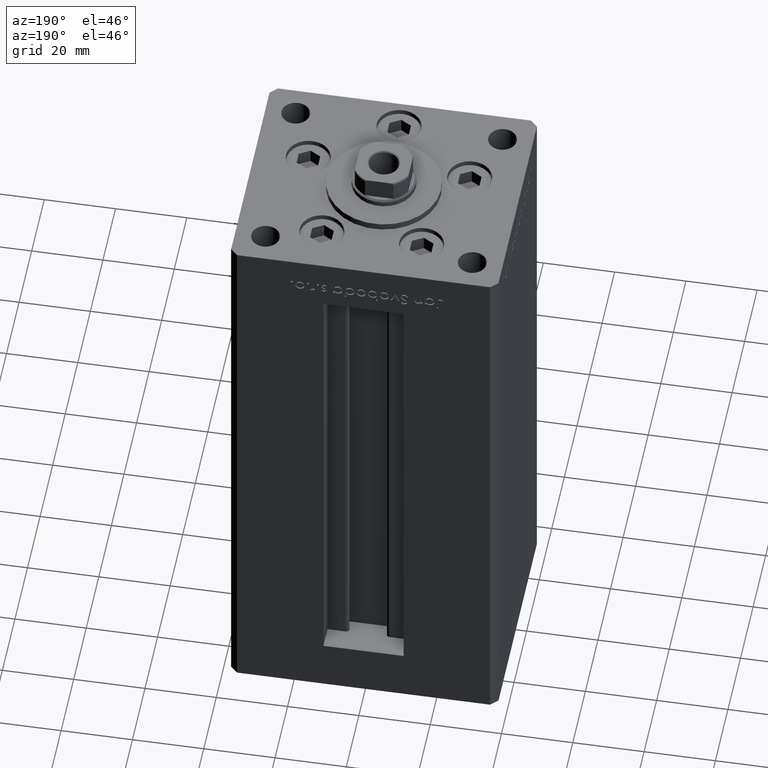
[diagram: clean part render]
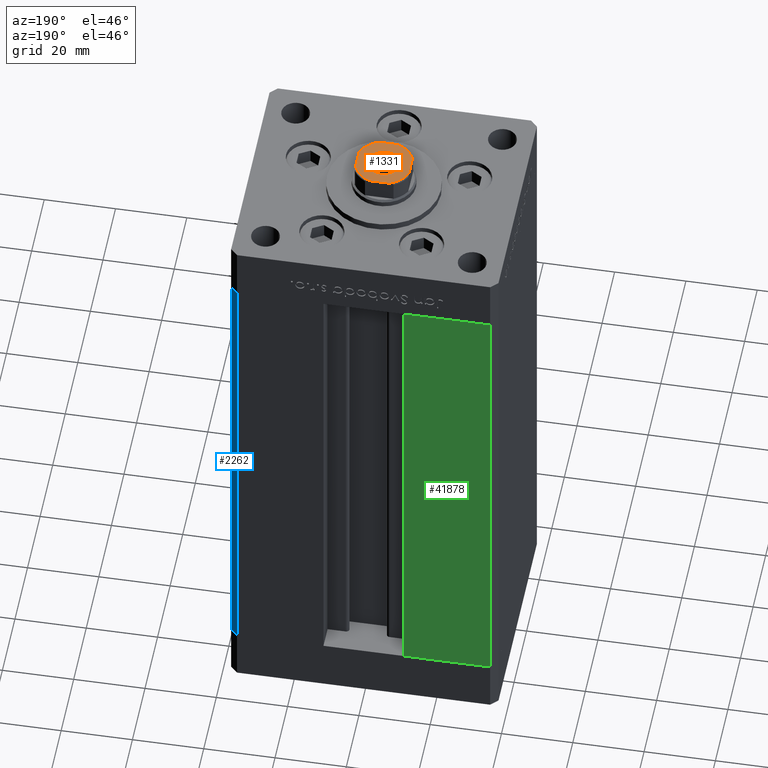
[diagram: same view with three faces highlighted in distinct colors, each labeled with its STEP entity id]
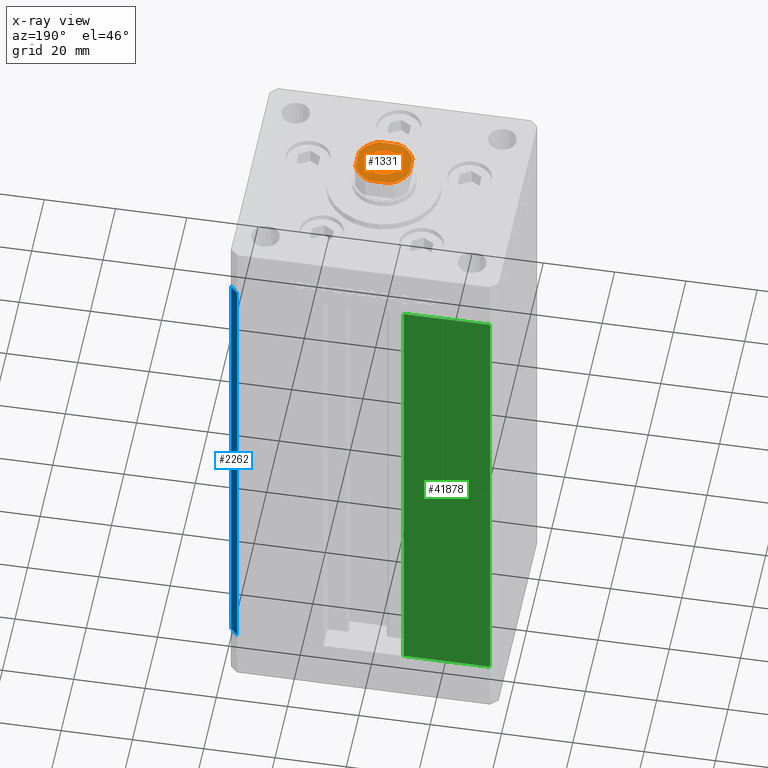
[diagram: x-ray of the same camera — body ghosted, the three highlighted faces saturated]
A machine part, auxiliary view with three faces highlighted in distinct colors.
The next image is the same camera in x-ray (body ghosted, the three faces saturated) — at least one of them is partly hidden behind the body in this view.
Their STEP definitions:

[orange] entity #1331 — the highlighted planar face has unit normal (0, 0, 1).
#93 = AXIS2_PLACEMENT_3D ( 'NONE', #30195, #10792, #2675 ) ;
#876 = DIRECTION ( 'NONE',  ( 1.000000000000000000, 0.000000000000000000, 0.000000000000000000 ) ) ;
#1331 = ADVANCED_FACE ( 'NONE', ( #16540, #48190 ), #39817, .T. ) ;
#1539 = DIRECTION ( 'NONE',  ( -0.000000000000000000, 0.000000000000000000, 1.000000000000000000 ) ) ;
#1774 = DIRECTION ( 'NONE',  ( -1.000000000000000000, -5.782411586589357392E-17, -0.000000000000000000 ) ) ;
#2612 = CIRCLE ( 'NONE', #93, 8.000000000000000000 ) ;
#2675 = DIRECTION ( 'NONE',  ( 1.000000000000000000, 0.000000000000000000, 0.000000000000000000 ) ) ;
#2917 = CARTESIAN_POINT ( 'NONE',  ( -7.499999999999998224, 2.783882181415015644, 148.0000000000000284 ) ) ;
#3037 = VERTEX_POINT ( 'NONE', #4263 ) ;
#3170 = CARTESIAN_POINT ( 'NONE',  ( 0.000000000000000000, 0.000000000000000000, 148.0000000000000284 ) ) ;
#3695 = CARTESIAN_POINT ( 'NONE',  ( 7.500000000000000888, -2.783882181415009427, 148.0000000000000284 ) ) ;
#3723 = DIRECTION ( 'NONE',  ( -0.000000000000000000, 0.000000000000000000, 1.000000000000000000 ) ) ;
#3882 = CIRCLE ( 'NONE', #23172, 8.000000000000000000 ) ;
#4263 = CARTESIAN_POINT ( 'NONE',  ( -2.783882181415013868, 7.499999999999999112, 148.0000000000000284 ) ) ;
#5854 = ORIENTED_EDGE ( 'NONE', *, *, #16508, .T. ) ;
#5947 = DIRECTION ( 'NONE',  ( 1.000000000000000000, 0.000000000000000000, 0.000000000000000000 ) ) ;
#7059 = VERTEX_POINT ( 'NONE', #31980 ) ;
#8108 = VERTEX_POINT ( 'NONE', #24847 ) ;
#8341 = CIRCLE ( 'NONE', #16722, 4.550000000000012257 ) ;
#8904 = DIRECTION ( 'NONE',  ( 0.000000000000000000, -0.000000000000000000, -1.000000000000000000 ) ) ;
#10415 = DIRECTION ( 'NONE',  ( 5.782411586589357392E-17, -1.000000000000000000, 0.000000000000000000 ) ) ;
#10789 = VERTEX_POINT ( 'NONE', #23120 ) ;
#10792 = DIRECTION ( 'NONE',  ( -0.000000000000000000, 0.000000000000000000, 1.000000000000000000 ) ) ;
#11571 = AXIS2_PLACEMENT_3D ( 'NONE', #19908, #47934, #36386 ) ;
#11914 = VERTEX_POINT ( 'NONE', #3695 ) ;
#13816 = CARTESIAN_POINT ( 'NONE',  ( -7.499999999999998224, 7.499999999999999112, 148.0000000000000284 ) ) ;
#15772 = DIRECTION ( 'NONE',  ( 1.000000000000000000, 0.000000000000000000, 0.000000000000000000 ) ) ;
#16508 = EDGE_CURVE ( 'NONE', #8108, #3037, #30079, .T. ) ;
#16540 = FACE_BOUND ( 'NONE', #39404, .T. ) ;
#16722 = AXIS2_PLACEMENT_3D ( 'NONE', #24726, #32582, #876 ) ;
#17018 = CARTESIAN_POINT ( 'NONE',  ( 0.000000000000000000, 0.000000000000000000, 148.0000000000000284 ) ) ;
#17153 = EDGE_CURVE ( 'NONE', #44794, #24289, #42128, .T. ) ;
#17514 = DIRECTION ( 'NONE',  ( 1.000000000000000000, 0.000000000000000000, 0.000000000000000000 ) ) ;
#18031 = CARTESIAN_POINT ( 'NONE',  ( -7.499999999999998224, -2.783882181415016088, 148.0000000000000284 ) ) ;
#19080 = EDGE_CURVE ( 'NONE', #11914, #7059, #19901, .T. ) ;
#19679 = EDGE_CURVE ( 'NONE', #49851, #10789, #8341, .T. ) ;
#19901 = LINE ( 'NONE', #24100, #38523 ) ;
#19908 = CARTESIAN_POINT ( 'NONE',  ( 0.000000000000000000, 0.000000000000000000, 148.0000000000000284 ) ) ;
#20227 = DIRECTION ( 'NONE',  ( 1.000000000000000000, 5.782411586589358625E-17, 0.000000000000000000 ) ) ;
#20273 = CIRCLE ( 'NONE', #48745, 8.000000000000000000 ) ;
#20548 = ORIENTED_EDGE ( 'NONE', *, *, #51318, .T. ) ;
#22367 = EDGE_CURVE ( 'NONE', #7059, #8108, #2612, .T. ) ;
#23120 = CARTESIAN_POINT ( 'NONE',  ( -4.550000000000012257, 5.572142936120472118E-16, 148.0000000000000284 ) ) ;
#23172 = AXIS2_PLACEMENT_3D ( 'NONE', #35173, #3723, #15772 ) ;
#23428 = CARTESIAN_POINT ( 'NONE',  ( -7.499999999999997335, -7.500000000000000888, 148.0000000000000284 ) ) ;
#24100 = CARTESIAN_POINT ( 'NONE',  ( 7.500000000000001776, 7.500000000000000000, 148.0000000000000284 ) ) ;
#24289 = VERTEX_POINT ( 'NONE', #18031 ) ;
#24726 = CARTESIAN_POINT ( 'NONE',  ( 0.000000000000000000, 0.000000000000000000, 148.0000000000000284 ) ) ;
#24847 = CARTESIAN_POINT ( 'NONE',  ( 2.783882181415012980, 7.500000000000000000, 148.0000000000000284 ) ) ;
#25853 = ORIENTED_EDGE ( 'NONE', *, *, #38524, .T. ) ;
#26218 = CARTESIAN_POINT ( 'NONE',  ( 4.550000000000012257, 0.000000000000000000, 148.0000000000000284 ) ) ;
#26904 = VERTEX_POINT ( 'NONE', #37400 ) ;
#29822 = CARTESIAN_POINT ( 'NONE',  ( -7.499999999999998224, 7.499999999999999112, 148.0000000000000284 ) ) ;
#30079 = LINE ( 'NONE', #13816, #45100 ) ;
#30195 = CARTESIAN_POINT ( 'NONE',  ( 0.000000000000000000, 0.000000000000000000, 148.0000000000000284 ) ) ;
#30238 = EDGE_CURVE ( 'NONE', #24289, #35116, #46213, .T. ) ;
#31297 = EDGE_CURVE ( 'NONE', #26904, #11914, #20273, .T. ) ;
#31864 = EDGE_CURVE ( 'NONE', #35116, #26904, #48259, .T. ) ;
#31980 = CARTESIAN_POINT ( 'NONE',  ( 7.500000000000000888, 2.783882181415007206, 148.0000000000000284 ) ) ;
#32203 = DIRECTION ( 'NONE',  ( 1.156482317317871478E-16, 1.000000000000000000, -0.000000000000000000 ) ) ;
#32488 = ORIENTED_EDGE ( 'NONE', *, *, #19679, .T. ) ;
#32582 = DIRECTION ( 'NONE',  ( 0.000000000000000000, -0.000000000000000000, -1.000000000000000000 ) ) ;
#32954 = AXIS2_PLACEMENT_3D ( 'NONE', #17018, #8904, #5947 ) ;
#34616 = ORIENTED_EDGE ( 'NONE', *, *, #31297, .T. ) ;
#35116 = VERTEX_POINT ( 'NONE', #37015 ) ;
#35173 = CARTESIAN_POINT ( 'NONE',  ( 0.000000000000000000, 0.000000000000000000, 148.0000000000000284 ) ) ;
#35379 = DIRECTION ( 'NONE',  ( 1.000000000000000000, 0.000000000000000000, 0.000000000000000000 ) ) ;
#36299 = CIRCLE ( 'NONE', #32954, 4.550000000000012257 ) ;
#36386 = DIRECTION ( 'NONE',  ( 1.000000000000000000, 0.000000000000000000, 0.000000000000000000 ) ) ;
#37015 = CARTESIAN_POINT ( 'NONE',  ( -2.783882181415010315, -7.500000000000000888, 148.0000000000000284 ) ) ;
#37400 = CARTESIAN_POINT ( 'NONE',  ( 2.783882181415008539, -7.500000000000000888, 148.0000000000000284 ) ) ;
#38524 = EDGE_CURVE ( 'NONE', #10789, #49851, #36299, .T. ) ;
#38523 = VECTOR ( 'NONE', #32203, 1000.000000000000000 ) ;
#39404 = EDGE_LOOP ( 'NONE', ( #32488, #25853 ) ) ;
#39817 = PLANE ( 'NONE',  #11571 ) ;
#42128 = LINE ( 'NONE', #29822, #49316 ) ;
#44794 = VERTEX_POINT ( 'NONE', #2917 ) ;
#45100 = VECTOR ( 'NONE', #1774, 1000.000000000000000 ) ;
#45110 = ORIENTED_EDGE ( 'NONE', *, *, #17153, .T. ) ;
#45550 = CARTESIAN_POINT ( 'NONE',  ( 0.000000000000000000, 0.000000000000000000, 148.0000000000000284 ) ) ;
#45969 = ORIENTED_EDGE ( 'NONE', *, *, #31864, .T. ) ;
#46213 = CIRCLE ( 'NONE', #51222, 8.000000000000000000 ) ;
#46925 = DIRECTION ( 'NONE',  ( -0.000000000000000000, 0.000000000000000000, 1.000000000000000000 ) ) ;
#47073 = VECTOR ( 'NONE', #20227, 1000.000000000000000 ) ;
#47201 = ORIENTED_EDGE ( 'NONE', *, *, #22367, .T. ) ;
#47934 = DIRECTION ( 'NONE',  ( -0.000000000000000000, 0.000000000000000000, 1.000000000000000000 ) ) ;
#48190 = FACE_OUTER_BOUND ( 'NONE', #48828, .T. ) ;
#48259 = LINE ( 'NONE', #23428, #47073 ) ;
#48745 = AXIS2_PLACEMENT_3D ( 'NONE', #3170, #46925, #35379 ) ;
#48828 = EDGE_LOOP ( 'NONE', ( #45110, #51837, #45969, #34616, #49673, #47201, #5854, #20548 ) ) ;
#49316 = VECTOR ( 'NONE', #10415, 1000.000000000000000 ) ;
#49673 = ORIENTED_EDGE ( 'NONE', *, *, #19080, .T. ) ;
#49851 = VERTEX_POINT ( 'NONE', #26218 ) ;
#51222 = AXIS2_PLACEMENT_3D ( 'NONE', #45550, #1539, #17514 ) ;
#51318 = EDGE_CURVE ( 'NONE', #3037, #44794, #3882, .T. ) ;
#51837 = ORIENTED_EDGE ( 'NONE', *, *, #30238, .T. ) ;

[blue] entity #2262 — the highlighted planar face has unit normal (0.7071, 0.7071, 0).
#2262 = ADVANCED_FACE ( 'NONE', ( #40664 ), #20487, .T. ) ;
#3443 = ORIENTED_EDGE ( 'NONE', *, *, #25916, .T. ) ;
#4349 = ORIENTED_EDGE ( 'NONE', *, *, #7839, .F. ) ;
#5380 = VECTOR ( 'NONE', #10471, 1000.000000000000114 ) ;
#7839 = EDGE_CURVE ( 'NONE', #34746, #14242, #31298, .T. ) ;
#8383 = DIRECTION ( 'NONE',  ( -0.000000000000000000, -0.000000000000000000, -1.000000000000000000 ) ) ;
#8964 = CARTESIAN_POINT ( 'NONE',  ( 35.50000000000000000, 32.49999999999999289, 136.0000000000000000 ) ) ;
#10471 = DIRECTION ( 'NONE',  ( 0.7071067811865500152, -0.7071067811865451302, 0.000000000000000000 ) ) ;
#12013 = CARTESIAN_POINT ( 'NONE',  ( 35.50000000000000000, 32.49999999999999289, 136.0000000000000000 ) ) ;
#14242 = VERTEX_POINT ( 'NONE', #50089 ) ;
#14870 = VECTOR ( 'NONE', #19754, 1000.000000000000000 ) ;
#16745 = LINE ( 'NONE', #44264, #41052 ) ;
#19754 = DIRECTION ( 'NONE',  ( -0.000000000000000000, -0.000000000000000000, -1.000000000000000000 ) ) ;
#20487 = PLANE ( 'NONE',  #27315 ) ;
#20699 = EDGE_CURVE ( 'NONE', #34746, #33455, #16745, .T. ) ;
#21403 = EDGE_LOOP ( 'NONE', ( #33846, #4349, #25339, #3443 ) ) ;
#24960 = DIRECTION ( 'NONE',  ( 0.7071067811865451302, 0.7071067811865500152, -0.000000000000000000 ) ) ;
#24994 = CARTESIAN_POINT ( 'NONE',  ( 37.50000000000000711, 30.50000000000000000, 136.0000000000000000 ) ) ;
#25339 = ORIENTED_EDGE ( 'NONE', *, *, #20699, .T. ) ;
#25685 = LINE ( 'NONE', #50557, #5380 ) ;
#25916 = EDGE_CURVE ( 'NONE', #33455, #37315, #47960, .T. ) ;
#27315 = AXIS2_PLACEMENT_3D ( 'NONE', #8964, #24960, #40937 ) ;
#27881 = CARTESIAN_POINT ( 'NONE',  ( 35.50000000000000000, 32.49999999999999289, 136.0000000000000000 ) ) ;
#28630 = VECTOR ( 'NONE', #8383, 1000.000000000000000 ) ;
#31298 = LINE ( 'NONE', #27881, #14870 ) ;
#33455 = VERTEX_POINT ( 'NONE', #24994 ) ;
#33846 = ORIENTED_EDGE ( 'NONE', *, *, #39520, .F. ) ;
#34746 = VERTEX_POINT ( 'NONE', #12013 ) ;
#36160 = CARTESIAN_POINT ( 'NONE',  ( 37.50000000000000711, 30.50000000000000000, 0.000000000000000000 ) ) ;
#36922 = DIRECTION ( 'NONE',  ( 0.7071067811865500152, -0.7071067811865451302, 0.000000000000000000 ) ) ;
#37315 = VERTEX_POINT ( 'NONE', #36160 ) ;
#39520 = EDGE_CURVE ( 'NONE', #14242, #37315, #25685, .T. ) ;
#40664 = FACE_OUTER_BOUND ( 'NONE', #21403, .T. ) ;
#40937 = DIRECTION ( 'NONE',  ( -0.7071067811865500152, 0.7071067811865451302, 0.000000000000000000 ) ) ;
#41052 = VECTOR ( 'NONE', #36922, 1000.000000000000114 ) ;
#44264 = CARTESIAN_POINT ( 'NONE',  ( 35.50000000000000000, 32.49999999999999289, 136.0000000000000000 ) ) ;
#47960 = LINE ( 'NONE', #48740, #28630 ) ;
#48740 = CARTESIAN_POINT ( 'NONE',  ( 37.50000000000000711, 30.50000000000000000, 136.0000000000000000 ) ) ;
#50089 = CARTESIAN_POINT ( 'NONE',  ( 35.50000000000000000, 32.49999999999999289, 0.000000000000000000 ) ) ;
#50557 = CARTESIAN_POINT ( 'NONE',  ( 35.50000000000000000, 32.49999999999999289, 0.000000000000000000 ) ) ;

[green] entity #41878 — the highlighted planar face has unit normal (0, -1, 0).
#1988 = CARTESIAN_POINT ( 'NONE',  ( -11.25000000000000178, 32.49999999999999289, 0.000000000000000000 ) ) ;
#4031 = VECTOR ( 'NONE', #48151, 1000.000000000000000 ) ;
#4102 = VERTEX_POINT ( 'NONE', #37808 ) ;
#4166 = CARTESIAN_POINT ( 'NONE',  ( -35.50000000000000000, 32.49999999999999289, 136.0000000000000000 ) ) ;
#4210 = PLANE ( 'NONE',  #22159 ) ;
#6720 = LINE ( 'NONE', #30040, #45207 ) ;
#9954 = EDGE_CURVE ( 'NONE', #23223, #17862, #44220, .T. ) ;
#13514 = EDGE_CURVE ( 'NONE', #38927, #17862, #43148, .T. ) ;
#17862 = VERTEX_POINT ( 'NONE', #30219 ) ;
#18557 = ORIENTED_EDGE ( 'NONE', *, *, #9954, .F. ) ;
#18989 = CARTESIAN_POINT ( 'NONE',  ( -11.25000000000000178, 32.49999999999999289, 0.000000000000000000 ) ) ;
#20050 = EDGE_CURVE ( 'NONE', #23223, #4102, #6720, .T. ) ;
#20187 = DIRECTION ( 'NONE',  ( 0.000000000000000000, -0.000000000000000000, -1.000000000000000000 ) ) ;
#21647 = LINE ( 'NONE', #1988, #37273 ) ;
#22159 = AXIS2_PLACEMENT_3D ( 'NONE', #23877, #28574, #20187 ) ;
#22738 = DIRECTION ( 'NONE',  ( -1.000000000000000000, 0.000000000000000000, 0.000000000000000000 ) ) ;
#23223 = VERTEX_POINT ( 'NONE', #4166 ) ;
#23877 = CARTESIAN_POINT ( 'NONE',  ( -11.25000000000000178, 32.49999999999999289, 136.0000000000000000 ) ) ;
#26641 = DIRECTION ( 'NONE',  ( 1.000000000000000000, 0.000000000000000000, 0.000000000000000000 ) ) ;
#27451 = EDGE_LOOP ( 'NONE', ( #49175, #31131, #36750, #18557 ) ) ;
#28574 = DIRECTION ( 'NONE',  ( 0.000000000000000000, -1.000000000000000000, 0.000000000000000000 ) ) ;
#30040 = CARTESIAN_POINT ( 'NONE',  ( -11.25000000000000178, 32.49999999999999289, 136.0000000000000000 ) ) ;
#30219 = CARTESIAN_POINT ( 'NONE',  ( -35.50000000000000000, 32.49999999999999289, 0.000000000000000000 ) ) ;
#31131 = ORIENTED_EDGE ( 'NONE', *, *, #48042, .F. ) ;
#36750 = ORIENTED_EDGE ( 'NONE', *, *, #13514, .T. ) ;
#37273 = VECTOR ( 'NONE', #37618, 1000.000000000000000 ) ;
#37618 = DIRECTION ( 'NONE',  ( -0.000000000000000000, -0.000000000000000000, 1.000000000000000000 ) ) ;
#37808 = CARTESIAN_POINT ( 'NONE',  ( -11.25000000000000178, 32.49999999999999289, 136.0000000000000000 ) ) ;
#38927 = VERTEX_POINT ( 'NONE', #18989 ) ;
#40103 = FACE_OUTER_BOUND ( 'NONE', #27451, .T. ) ;
#40281 = CARTESIAN_POINT ( 'NONE',  ( -35.50000000000000000, 32.49999999999999289, 136.0000000000000000 ) ) ;
#41878 = ADVANCED_FACE ( 'NONE', ( #40103 ), #4210, .F. ) ;
#43148 = LINE ( 'NONE', #50489, #49206 ) ;
#44220 = LINE ( 'NONE', #40281, #4031 ) ;
#45207 = VECTOR ( 'NONE', #26641, 1000.000000000000000 ) ;
#48042 = EDGE_CURVE ( 'NONE', #38927, #4102, #21647, .T. ) ;
#48151 = DIRECTION ( 'NONE',  ( -0.000000000000000000, -0.000000000000000000, -1.000000000000000000 ) ) ;
#49175 = ORIENTED_EDGE ( 'NONE', *, *, #20050, .T. ) ;
#49206 = VECTOR ( 'NONE', #22738, 1000.000000000000000 ) ;
#50489 = CARTESIAN_POINT ( 'NONE',  ( -11.25000000000000178, 32.49999999999999289, 0.000000000000000000 ) ) ;